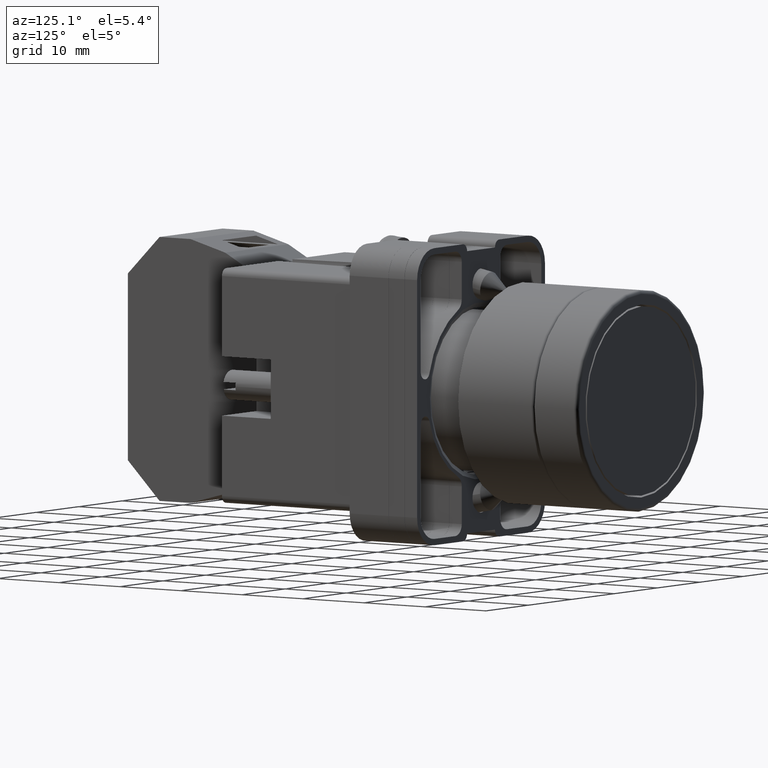
[diagram: clean part render]
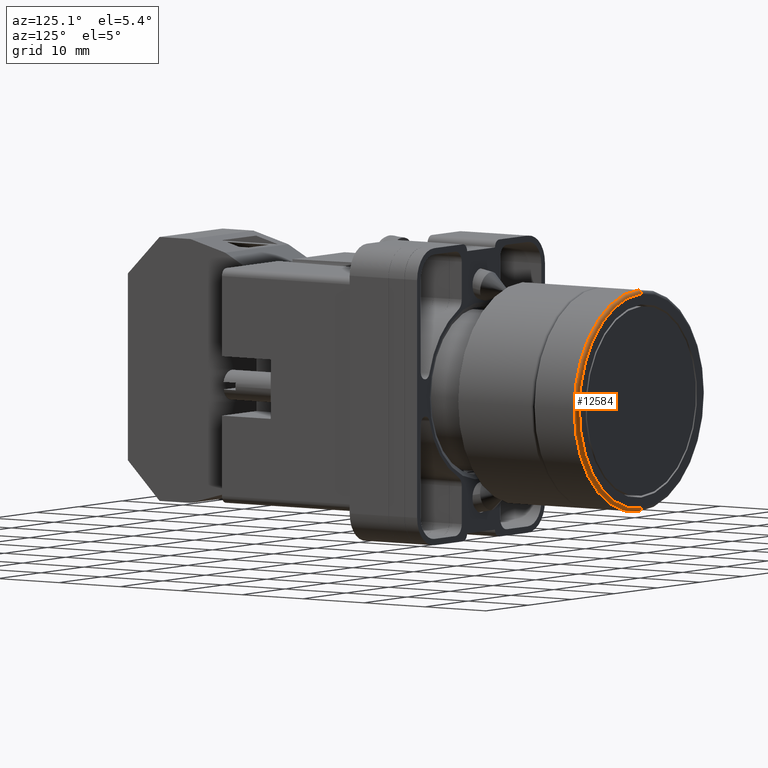
[diagram: same view with one face highlighted and labeled with its STEP entity id]
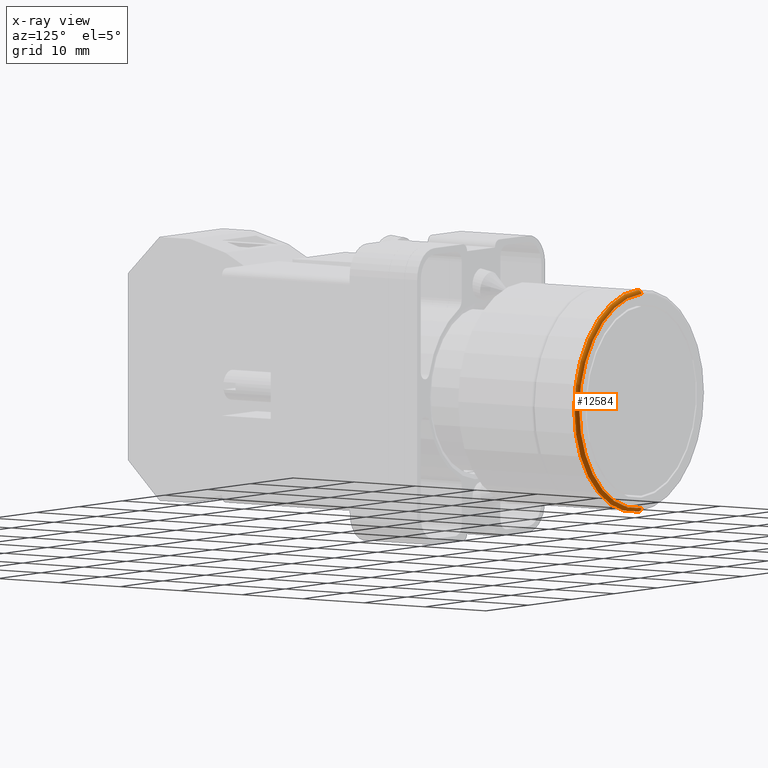
[diagram: x-ray of the same camera — body ghosted, the highlighted face saturated]
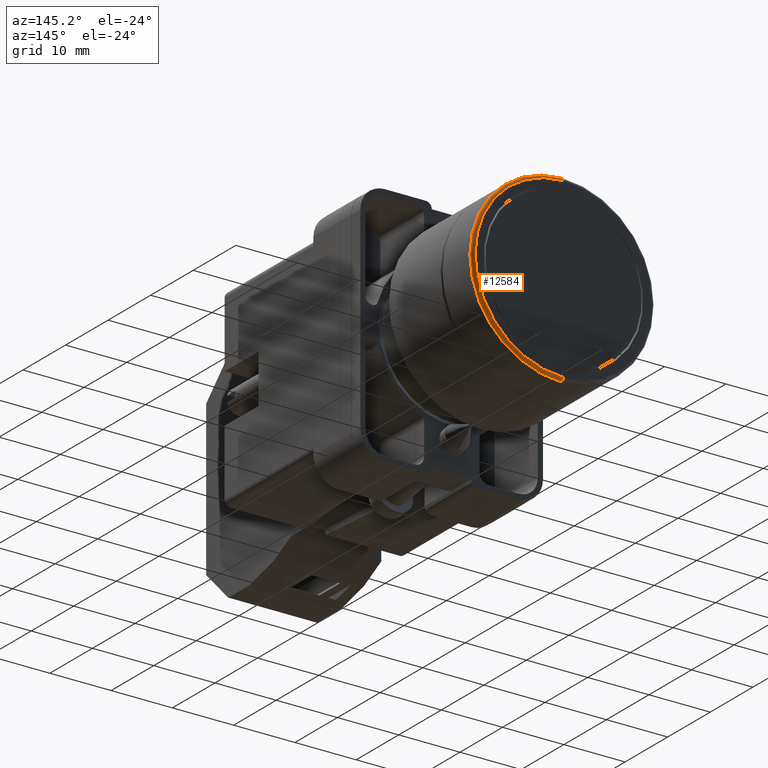
[diagram: same view with one face highlighted and labeled with its STEP entity id]
A machine part, auxiliary view. The second image highlights one B-rep face of the part: STEP entity #12584.
The next image is the same camera in x-ray: the body ghosted, the highlighted face saturated — about 0% of this face is hidden behind the body in this view.
A second angle (auxiliary view) of the same face is appended — the face is thin or edge-on in the first view.
In plain terms, the highlighted toroidal blend (fillet) surface has major radius 14.425 mm and minor (blend) radius 0.5 mm.
Its self-contained STEP definition (entity closure, byte-faithful):
#30 = EDGE_CURVE ( 'NONE', #7355, #7803, #1262, .T. ) ;
#403 = CARTESIAN_POINT ( 'NONE',  ( 0.0000000000000000000, 1.196850393700787300, 0.5875984251968504600 ) ) ;
#608 = DIRECTION ( 'NONE',  ( -0.0000000000000000000, -1.000000000000000000, -0.0000000000000000000 ) ) ;
#708 = ORIENTED_EDGE ( 'NONE', *, *, #4405, .F. ) ;
#714 = CIRCLE ( 'NONE', #4695, 0.5875984251968504600 ) ;
#834 = EDGE_CURVE ( 'NONE', #9000, #7843, #10749, .T. ) ;
#1262 = CIRCLE ( 'NONE', #11142, 0.01968503937007875700 ) ;
#1578 = EDGE_CURVE ( 'NONE', #7355, #9000, #714, .T. ) ;
#2162 = FACE_OUTER_BOUND ( 'NONE', #3649, .T. ) ;
#2206 = DIRECTION ( 'NONE',  ( 0.0000000000000000000, 1.000000000000000000, 0.0000000000000000000 ) ) ;
#2746 = DIRECTION ( 'NONE',  ( 1.000000000000000000, -0.0000000000000000000, 1.224646799147353200E-016 ) ) ;
#3225 = CARTESIAN_POINT ( 'NONE',  ( 7.075469203735202100E-017, 1.216535433070866000, -0.5679133858267716400 ) ) ;
#3649 = EDGE_LOOP ( 'NONE', ( #14134, #5393, #708, #7685 ) ) ;
#3925 = DIRECTION ( 'NONE',  ( 0.0000000000000000000, 1.000000000000000000, 0.0000000000000000000 ) ) ;
#4405 = EDGE_CURVE ( 'NONE', #7843, #7803, #5955, .T. ) ;
#4695 = AXIS2_PLACEMENT_3D ( 'NONE', #7143, #608, #8267 ) ;
#5393 = ORIENTED_EDGE ( 'NONE', *, *, #30, .T. ) ;
#5453 = CARTESIAN_POINT ( 'NONE',  ( 0.0000000000000000000, 1.196850393700787300, 0.0000000000000000000 ) ) ;
#5509 = CARTESIAN_POINT ( 'NONE',  ( 0.0000000000000000000, 1.216535433070866000, 0.5679133858267716400 ) ) ;
#5510 = AXIS2_PLACEMENT_3D ( 'NONE', #12376, #5643, #13536 ) ;
#5523 = CARTESIAN_POINT ( 'NONE',  ( 7.196005306013484500E-017, 1.196850393700787300, -0.5875984251968504600 ) ) ;
#5643 = DIRECTION ( 'NONE',  ( -1.000000000000000000, 0.0000000000000000000, 0.0000000000000000000 ) ) ;
#5955 = CIRCLE ( 'NONE', #7963, 0.5679133858267716400 ) ;
#7143 = CARTESIAN_POINT ( 'NONE',  ( 0.0000000000000000000, 1.196850393700787300, 0.0000000000000000000 ) ) ;
#7355 = VERTEX_POINT ( 'NONE', #5523 ) ;
#7685 = ORIENTED_EDGE ( 'NONE', *, *, #834, .F. ) ;
#7803 = VERTEX_POINT ( 'NONE', #3225 ) ;
#7843 = VERTEX_POINT ( 'NONE', #5509 ) ;
#7963 = AXIS2_PLACEMENT_3D ( 'NONE', #10602, #3925, #11757 ) ;
#8146 = AXIS2_PLACEMENT_3D ( 'NONE', #5453, #2206, #9962 ) ;
#8267 = DIRECTION ( 'NONE',  ( 0.0000000000000000000, 0.0000000000000000000, 1.000000000000000000 ) ) ;
#9000 = VERTEX_POINT ( 'NONE', #403 ) ;
#9962 = DIRECTION ( 'NONE',  ( 0.0000000000000000000, 0.0000000000000000000, 1.000000000000000000 ) ) ;
#10602 = CARTESIAN_POINT ( 'NONE',  ( 0.0000000000000000000, 1.216535433070866000, 0.0000000000000000000 ) ) ;
#10749 = CIRCLE ( 'NONE', #5510, 0.01968503937007875700 ) ;
#11142 = AXIS2_PLACEMENT_3D ( 'NONE', #13666, #2746, #12903 ) ;
#11384 = TOROIDAL_SURFACE ( 'NONE', #8146, 0.5679133858267716400, 0.01968503937007874000 ) ;
#11757 = DIRECTION ( 'NONE',  ( 0.0000000000000000000, 0.0000000000000000000, 1.000000000000000000 ) ) ;
#12376 = CARTESIAN_POINT ( 'NONE',  ( 0.0000000000000000000, 1.196850393700787300, 0.5679133858267716400 ) ) ;
#12584 = ADVANCED_FACE ( 'NONE', ( #2162 ), #11384, .T. ) ;
#12903 = DIRECTION ( 'NONE',  ( 1.224646799147349500E-016, 0.0000000000000000000, -1.000000000000000000 ) ) ;
#13536 = DIRECTION ( 'NONE',  ( 0.0000000000000000000, 0.0000000000000000000, 1.000000000000000000 ) ) ;
#13666 = CARTESIAN_POINT ( 'NONE',  ( 6.954933101456917200E-017, 1.196850393700787300, -0.5679133858267716400 ) ) ;
#14134 = ORIENTED_EDGE ( 'NONE', *, *, #1578, .F. ) ;